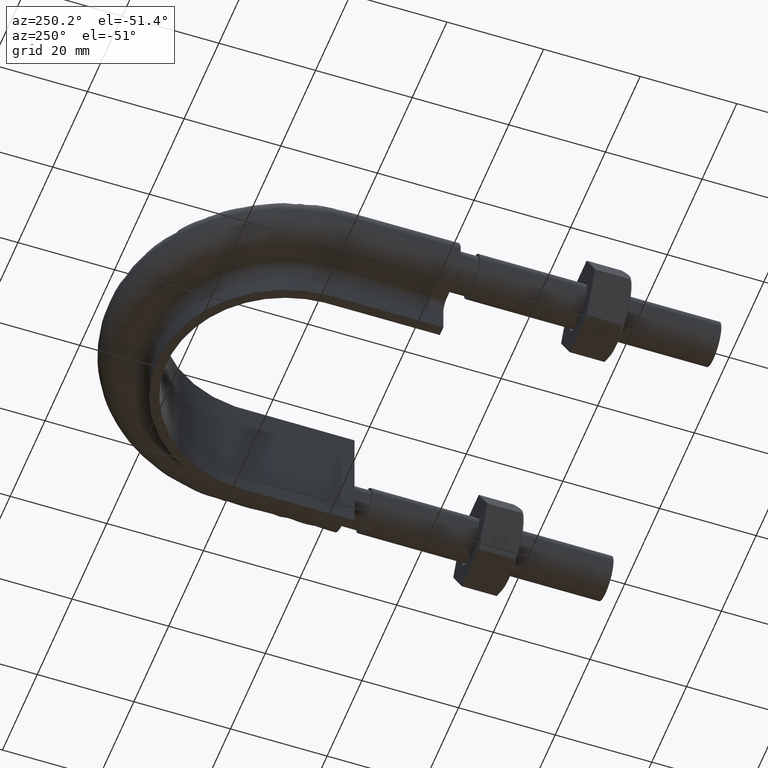
[diagram: clean part render]
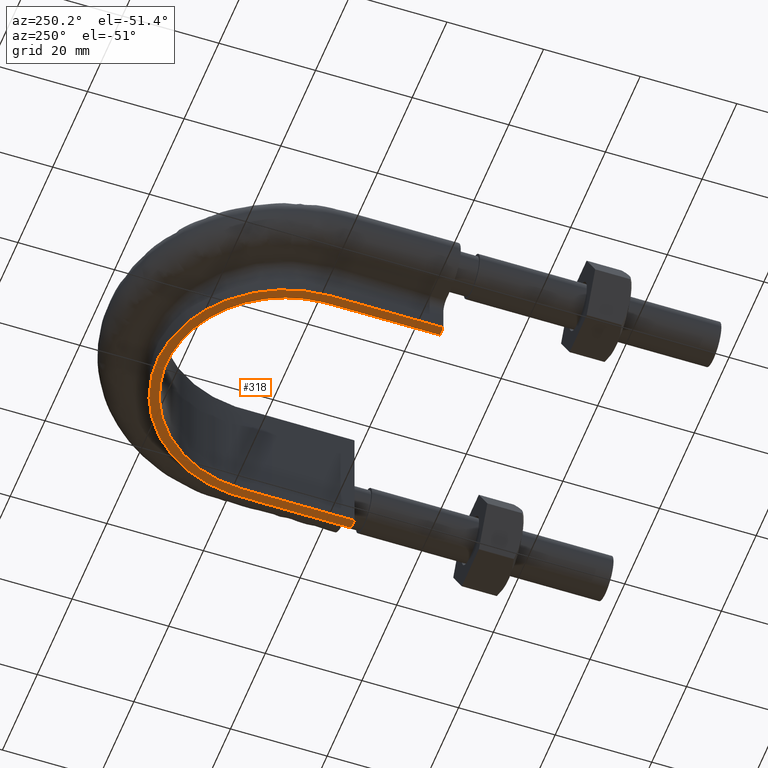
[diagram: same view with one face highlighted and labeled with its STEP entity id]
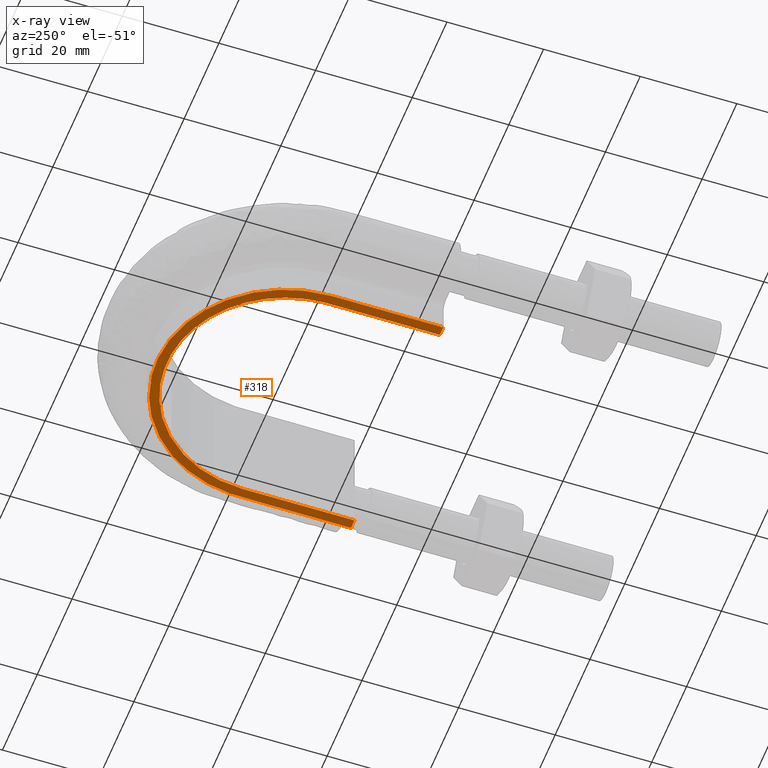
[diagram: x-ray of the same camera — body ghosted, the highlighted face saturated]
A machine part, auxiliary view. The second image highlights one B-rep face of the part: STEP entity #318.
The next image is the same camera in x-ray: the body ghosted, the highlighted face saturated — about 0% of this face is hidden behind the body in this view.
In plain terms, the highlighted planar face has unit normal (0, 0, 1).
Its self-contained STEP definition (entity closure, byte-faithful):
#318 = ADVANCED_FACE( '', ( #402 ), #403, .F. );
#402 = FACE_OUTER_BOUND( '', #1102, .T. );
#403 = PLANE( '', #1103 );
#1102 = EDGE_LOOP( '', ( #1587, #1588, #1589, #1590 ) );
#1103 = AXIS2_PLACEMENT_3D( '', #1591, #1592, #1593 );
#1587 = ORIENTED_EDGE( '', *, *, #2123, .F. );
#1588 = ORIENTED_EDGE( '', *, *, #2114, .F. );
#1589 = ORIENTED_EDGE( '', *, *, #2116, .T. );
#1590 = ORIENTED_EDGE( '', *, *, #2121, .F. );
#1591 = CARTESIAN_POINT( '', ( 40.0000000000000, 124.300000000000, -12.5000000000000 ) );
#1592 = DIRECTION( '', ( 0.000000000000000, 0.000000000000000, 1.00000000000000 ) );
#1593 = DIRECTION( '', ( 1.00000000000000, 0.000000000000000, 0.000000000000000 ) );
#2114 = EDGE_CURVE( '', #2268, #2264, #2270, .T. );
#2116 = EDGE_CURVE( '', #2268, #2273, #2274, .T. );
#2121 = EDGE_CURVE( '', #2280, #2273, #2282, .T. );
#2123 = EDGE_CURVE( '', #2264, #2280, #2285, .F. );
#2264 = VERTEX_POINT( '', #2514 );
#2268 = VERTEX_POINT( '', #2520 );
#2270 = LINE( '', #2552, #2553 );
#2273 = VERTEX_POINT( '', #2565 );
#2274 = B_SPLINE_CURVE_WITH_KNOTS( '', 3, ( #2566, #2567, #2568, #2569, #2570, #2571, #2572, #2573, #2574, #2575, #2576, #2577, #2578, #2579, #2580, #2581, #2582 ), .UNSPECIFIED., .F., .F., ( 4, 3, 1, 1, 1, 1, 1, 1, 1, 3, 4 ), ( 0.145756457564577, 1.00000000000000, 1.50000000000000, 2.00000000000000, 3.00000000000000, 4.00000000000000, 5.00000000000000, 6.00000000000000, 6.50000000000000, 7.00000000000000, 7.85424354243542 ), .UNSPECIFIED. );
#2280 = VERTEX_POINT( '', #2635 );
#2282 = LINE( '', #2638, #2639 );
#2285 = B_SPLINE_CURVE_WITH_KNOTS( '', 3, ( #2651, #2652, #2653, #2654, #2655, #2656, #2657, #2658, #2659, #2660, #2661, #2662, #2663, #2664, #2665, #2666, #2667 ), .UNSPECIFIED., .F., .F., ( 4, 3, 1, 1, 1, 1, 1, 1, 1, 3, 4 ), ( -7.85424354243542, -7.00000000000000, -6.50000000000000, -6.00000000000000, -5.00000000000000, -4.00000000000000, -3.00000000000000, -2.00000000000000, -1.50000000000000, -1.00000000000000, -0.145756457564576 ), .UNSPECIFIED. );
#2514 = CARTESIAN_POINT( '', ( -24.5500000000000, 54.3000000000000, -12.5000000000000 ) );
#2520 = CARTESIAN_POINT( '', ( -26.5500000000000, 54.3000000000000, -12.5000000000000 ) );
#2552 = CARTESIAN_POINT( '', ( -40.0000000000000, 54.3000000000000, -12.5000000000000 ) );
#2553 = VECTOR( '', #3161, 1000.00000000000 );
#2565 = CARTESIAN_POINT( '', ( 26.5500000000000, 54.3000000000000, -12.5000000000000 ) );
#2566 = CARTESIAN_POINT( '', ( -26.5500000000000, 54.3000000000000, -12.5000000000000 ) );
#2567 = CARTESIAN_POINT( '', ( -26.5500000000000, 62.0166666666667, -12.5000000000000 ) );
#2568 = CARTESIAN_POINT( '', ( -26.5500000000000, 69.7333333333334, -12.5000000000000 ) );
#2569 = CARTESIAN_POINT( '', ( -26.5500000000000, 77.4500000000000, -12.5000000000000 ) );
#2570 = CARTESIAN_POINT( '', ( -26.5500000000000, 79.7566352991258, -12.5000000000000 ) );
#2571 = CARTESIAN_POINT( '', ( -25.9278217826460, 84.4015410955848, -12.5000000000000 ) );
#2572 = CARTESIAN_POINT( '', ( -22.3733615438456, 93.0387447403505, -12.5000000000000 ) );
#2573 = CARTESIAN_POINT( '', ( -13.8952542493119, 101.518591858921, -12.5000000000000 ) );
#2574 = CARTESIAN_POINT( '', ( 2.71993121653610E-014, 105.240704070539, -12.5000000000000 ) );
#2575 = CARTESIAN_POINT( '', ( 13.8952542493119, 101.518591858921, -12.5000000000000 ) );
#2576 = CARTESIAN_POINT( '', ( 22.3733615438457, 93.0387447403505, -12.5000000000000 ) );
#2577 = CARTESIAN_POINT( '', ( 25.9278217826460, 84.4015410955847, -12.5000000000000 ) );
#2578 = CARTESIAN_POINT( '', ( 26.5500000000000, 79.7566352991258, -12.5000000000000 ) );
#2579 = CARTESIAN_POINT( '', ( 26.5500000000000, 77.4500000000000, -12.5000000000000 ) );
#2580 = CARTESIAN_POINT( '', ( 26.5500000000000, 69.7333333333333, -12.5000000000000 ) );
#2581 = CARTESIAN_POINT( '', ( 26.5500000000000, 62.0166666666666, -12.5000000000000 ) );
#2582 = CARTESIAN_POINT( '', ( 26.5500000000000, 54.3000000000000, -12.5000000000000 ) );
#2635 = CARTESIAN_POINT( '', ( 24.5500000000000, 54.3000000000000, -12.5000000000000 ) );
#2638 = CARTESIAN_POINT( '', ( -40.0000000000000, 54.3000000000000, -12.5000000000000 ) );
#2639 = VECTOR( '', #3164, 1000.00000000000 );
#2651 = CARTESIAN_POINT( '', ( 24.5500000000000, 54.3000000000000, -12.5000000000000 ) );
#2652 = CARTESIAN_POINT( '', ( 24.5500000000000, 62.0166666666667, -12.5000000000000 ) );
#2653 = CARTESIAN_POINT( '', ( 24.5500000000000, 69.7333333333333, -12.5000000000000 ) );
#2654 = CARTESIAN_POINT( '', ( 24.5500000000000, 77.4500000000000, -12.5000000000000 ) );
#2655 = CARTESIAN_POINT( '', ( 24.5500000000000, 79.5780025041717, -12.5000000000000 ) );
#2656 = CARTESIAN_POINT( '', ( 23.9738358905282, 83.8798607773325, -12.5000000000000 ) );
#2657 = CARTESIAN_POINT( '', ( 20.6884777838097, 91.8633071998795, -12.5000000000000 ) );
#2658 = CARTESIAN_POINT( '', ( 12.8483754366917, 99.7059313144219, -12.5000000000000 ) );
#2659 = CARTESIAN_POINT( '', ( 1.95703452673187E-014, 103.147034342789, -12.5000000000000 ) );
#2660 = CARTESIAN_POINT( '', ( -12.8483754366917, 99.7059313144219, -12.5000000000000 ) );
#2661 = CARTESIAN_POINT( '', ( -20.6884777838097, 91.8633071998795, -12.5000000000000 ) );
#2662 = CARTESIAN_POINT( '', ( -23.9738358905281, 83.8798607773325, -12.5000000000000 ) );
#2663 = CARTESIAN_POINT( '', ( -24.5500000000000, 79.5780025041717, -12.5000000000000 ) );
#2664 = CARTESIAN_POINT( '', ( -24.5500000000000, 77.4500000000000, -12.5000000000000 ) );
#2665 = CARTESIAN_POINT( '', ( -24.5500000000000, 69.7333333333333, -12.5000000000000 ) );
#2666 = CARTESIAN_POINT( '', ( -24.5500000000000, 62.0166666666667, -12.5000000000000 ) );
#2667 = CARTESIAN_POINT( '', ( -24.5500000000000, 54.3000000000000, -12.5000000000000 ) );
#3161 = DIRECTION( '', ( 1.00000000000000, -2.75411799042744E-080, 0.000000000000000 ) );
#3164 = DIRECTION( '', ( 1.00000000000000, -2.75411799042744E-080, 0.000000000000000 ) );